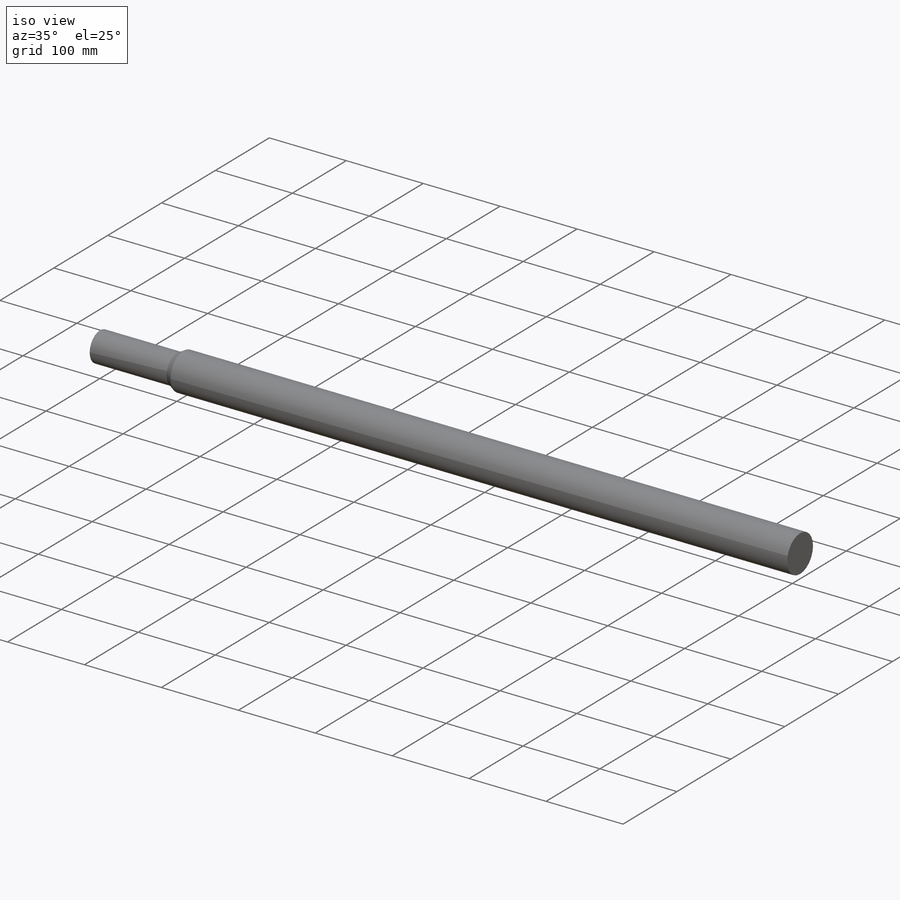
[diagram: iso view]
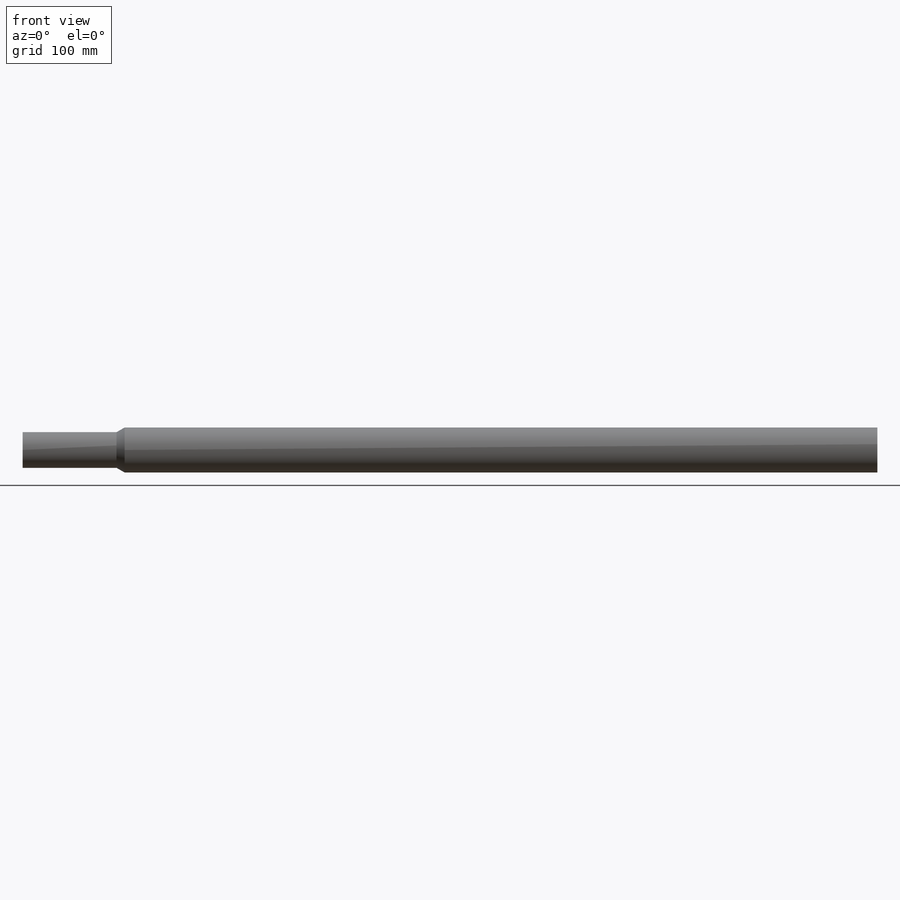
[diagram: front view]
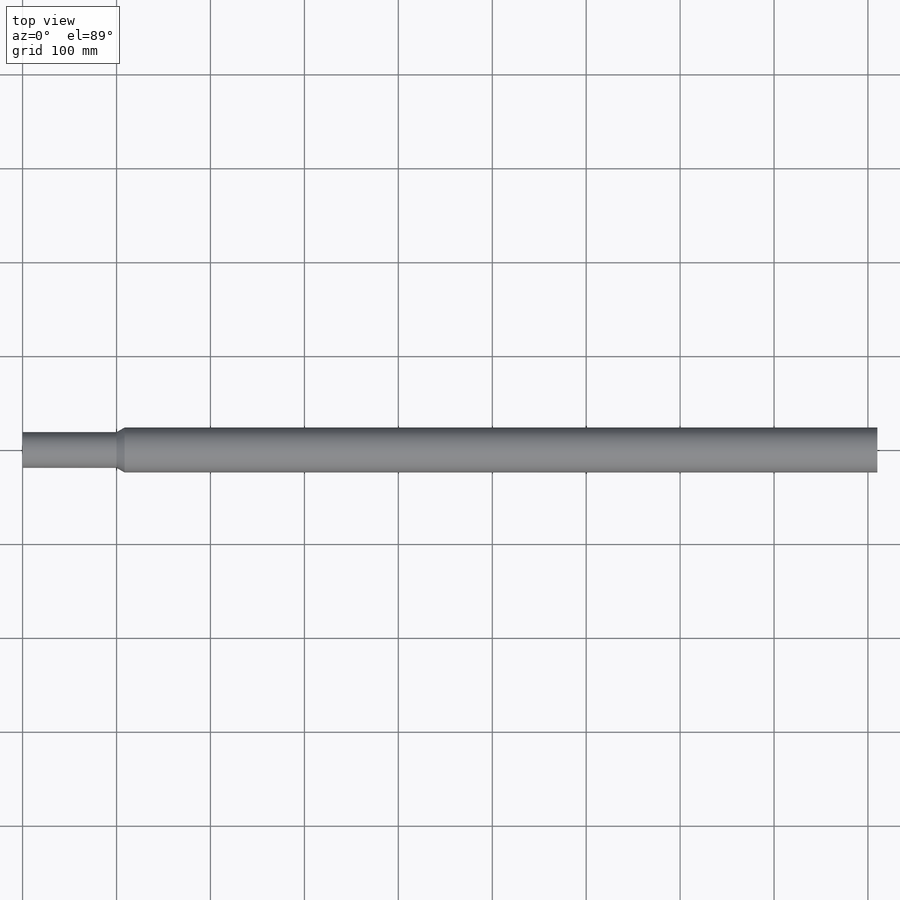
[diagram: top view]
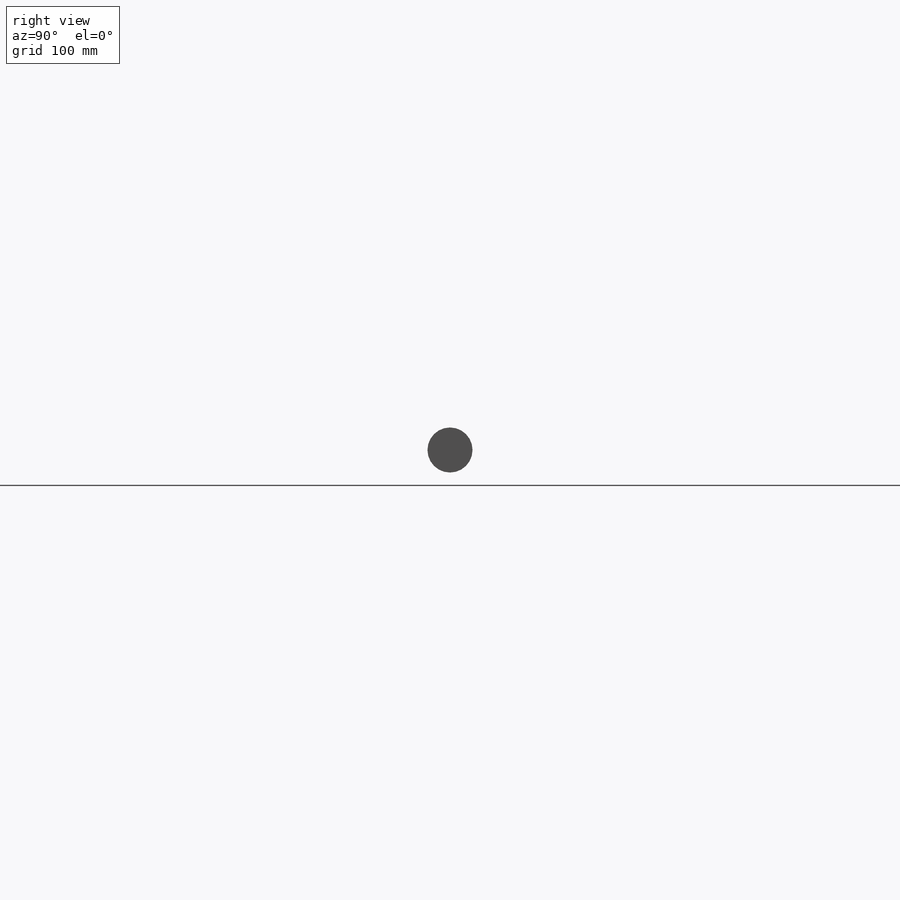
[diagram: right view]
SOLIDWORKS PART (.sldprt)
format: sldprt  version: not decoded by parser v0  size: 166,912 bytes
history: native  units: mm
features: plane x3, sketch x3, material x1, extrude x1, cut_revolve x1 (+10 scaffold rows collapsed)
feature tree (19):
  scaffold x10  (default folders/planes/origin — collapsed)
  material  "材质 <未指定>"
  plane  "前视基准面"
  plane  "上视基准面"
  plane  "右视基准面"
  sketch  "草图3"  dims[D1=48.0mm]
  extrude  "凸台-拉伸2"  Depth=910mm
  sketch  "草图4"  dims[c1.D1=100.0mm c1.D2=~24.826438mm c2.D2=30.0deg c2.D3=5.0mm]
  cut_revolve  "切除-旋转1"  Angle=360deg
  sketch  "草图5"  dims[c1.D1=3.0mm c1.D2=~4.462236mm c1.D3=3.0mm c2.D2=3.0mm]
decode coverage: 5 of 5 modeling features carry decoded parameters
note: ~ marks probable driven/reference dimensions
note: suppression state not decoded; provenance and decode notes live in map.json
